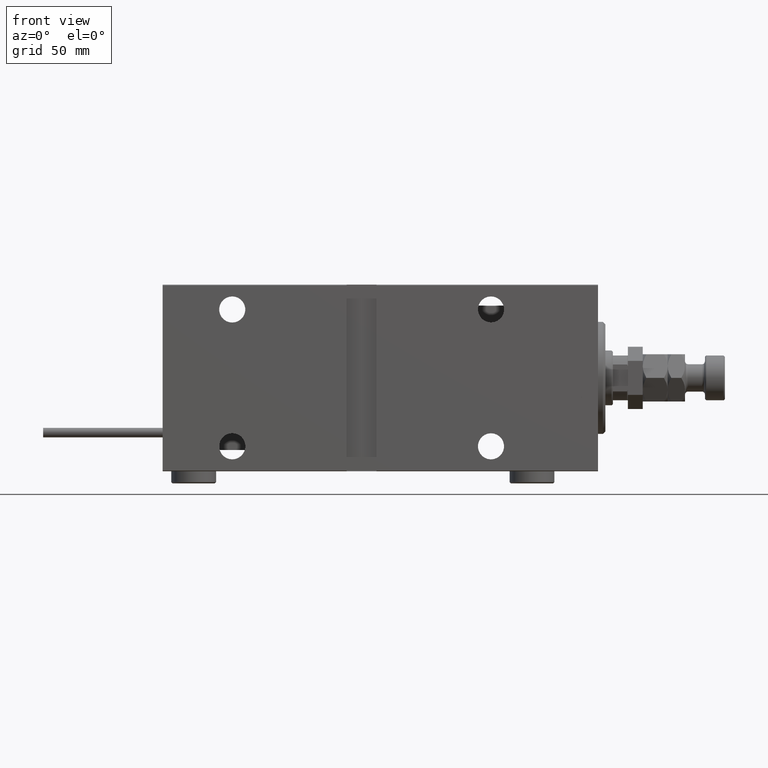
[diagram: clean part render]
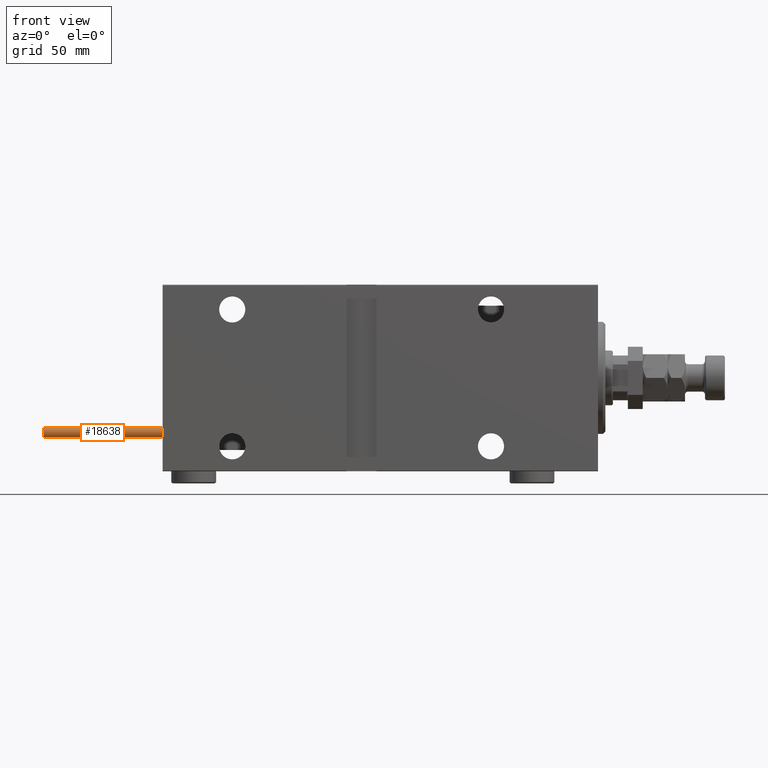
[diagram: same view with one face highlighted and labeled with its STEP entity id]
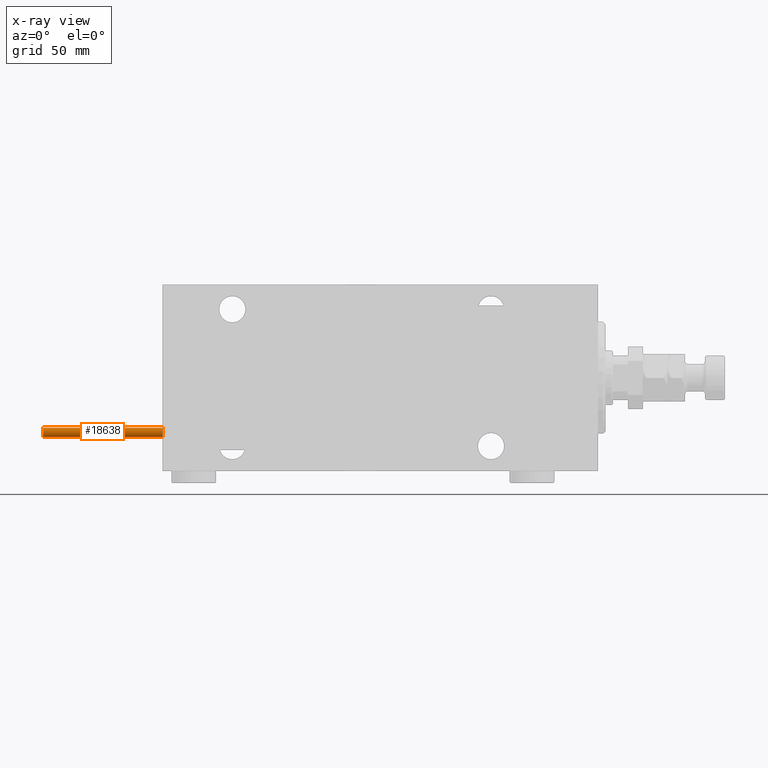
[diagram: x-ray of the same camera — body ghosted, the highlighted face saturated]
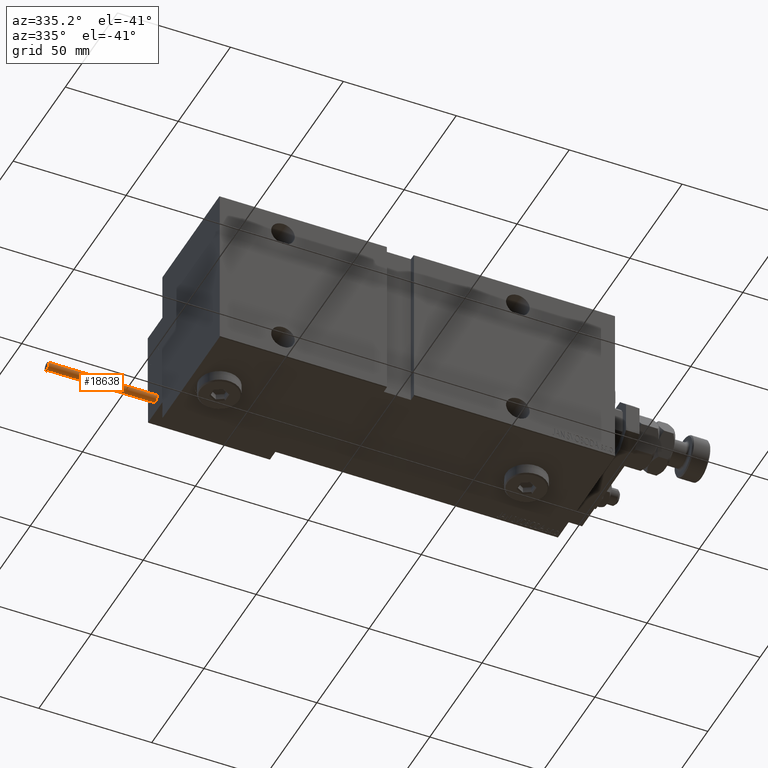
[diagram: same view with one face highlighted and labeled with its STEP entity id]
A machine part, front view. The second image highlights one B-rep face of the part: STEP entity #18638.
The next image is the same camera in x-ray: the body ghosted, the highlighted face saturated — about 0% of this face is hidden behind the body in this view.
A second angle (auxiliary view) of the same face is appended — the face is thin or edge-on in the first view.
In plain terms, the highlighted cylindrical surface (edge-blend (fillet) strip) has radius 1.9 mm, axis along (1, -0, 0).
Its self-contained STEP definition (entity closure, byte-faithful):
#2037 = DIRECTION ( 'NONE',  ( -0.000000000000000000, -0.000000000000000000, -1.000000000000000000 ) ) ;
#2297 = LINE ( 'NONE', #18617, #20491 ) ;
#8193 = VERTEX_POINT ( 'NONE', #21263 ) ;
#8624 = AXIS2_PLACEMENT_3D ( 'NONE', #10093, #22137, #18394 ) ;
#8723 = CARTESIAN_POINT ( 'NONE',  ( 1.899999999999999467, 2.326828918379970872E-16, 48.00000000000000000 ) ) ;
#9271 = CARTESIAN_POINT ( 'NONE',  ( -1.899999999999999467, 0.000000000000000000, 0.000000000000000000 ) ) ;
#10093 = CARTESIAN_POINT ( 'NONE',  ( 0.000000000000000000, 0.000000000000000000, 0.000000000000000000 ) ) ;
#10322 = VERTEX_POINT ( 'NONE', #14460 ) ;
#11895 = CARTESIAN_POINT ( 'NONE',  ( -1.899999999999999467, 0.000000000000000000, 48.00000000000000000 ) ) ;
#13253 = EDGE_CURVE ( 'NONE', #8193, #38460, #34353, .T. ) ;
#13536 = ORIENTED_EDGE ( 'NONE', *, *, #41358, .F. ) ;
#13685 = VERTEX_POINT ( 'NONE', #9271 ) ;
#14161 = DIRECTION ( 'NONE',  ( -1.000000000000000000, 0.000000000000000000, 0.000000000000000000 ) ) ;
#14460 = CARTESIAN_POINT ( 'NONE',  ( 1.899999999999999467, 2.326828918379970872E-16, 0.000000000000000000 ) ) ;
#14830 = EDGE_LOOP ( 'NONE', ( #13536, #18393, #17840, #17019 ) ) ;
#17019 = ORIENTED_EDGE ( 'NONE', *, *, #36261, .T. ) ;
#17656 = CYLINDRICAL_SURFACE ( 'NONE', #29549, 1.899999999999999467 ) ;
#17840 = ORIENTED_EDGE ( 'NONE', *, *, #39489, .T. ) ;
#18393 = ORIENTED_EDGE ( 'NONE', *, *, #13253, .F. ) ;
#18394 = DIRECTION ( 'NONE',  ( 1.000000000000000000, 0.000000000000000000, 0.000000000000000000 ) ) ;
#18617 = CARTESIAN_POINT ( 'NONE',  ( 1.899999999999999467, 2.326828918379970872E-16, 48.00000000000000000 ) ) ;
#18638 = ADVANCED_FACE ( 'NONE', ( #30491 ), #17656, .T. ) ;
#19223 = VECTOR ( 'NONE', #24212, 1000.000000000000000 ) ;
#19660 = LINE ( 'NONE', #11895, #19223 ) ;
#20491 = VECTOR ( 'NONE', #2037, 1000.000000000000000 ) ;
#21263 = CARTESIAN_POINT ( 'NONE',  ( -1.899999999999999467, 0.000000000000000000, 48.00000000000000000 ) ) ;
#22137 = DIRECTION ( 'NONE',  ( 0.000000000000000000, 0.000000000000000000, 1.000000000000000000 ) ) ;
#23096 = DIRECTION ( 'NONE',  ( 0.000000000000000000, 0.000000000000000000, 1.000000000000000000 ) ) ;
#24212 = DIRECTION ( 'NONE',  ( -0.000000000000000000, -0.000000000000000000, -1.000000000000000000 ) ) ;
#29549 = AXIS2_PLACEMENT_3D ( 'NONE', #42281, #39049, #14161 ) ;
#30491 = FACE_OUTER_BOUND ( 'NONE', #14830, .T. ) ;
#34353 = CIRCLE ( 'NONE', #51471, 1.899999999999999467 ) ;
#35961 = CIRCLE ( 'NONE', #8624, 1.899999999999999467 ) ;
#36261 = EDGE_CURVE ( 'NONE', #13685, #10322, #35961, .T. ) ;
#38460 = VERTEX_POINT ( 'NONE', #8723 ) ;
#39049 = DIRECTION ( 'NONE',  ( -0.000000000000000000, -0.000000000000000000, -1.000000000000000000 ) ) ;
#39489 = EDGE_CURVE ( 'NONE', #8193, #13685, #19660, .T. ) ;
#39680 = CARTESIAN_POINT ( 'NONE',  ( 0.000000000000000000, 0.000000000000000000, 48.00000000000000000 ) ) ;
#41358 = EDGE_CURVE ( 'NONE', #38460, #10322, #2297, .T. ) ;
#42281 = CARTESIAN_POINT ( 'NONE',  ( 0.000000000000000000, 0.000000000000000000, 48.00000000000000000 ) ) ;
#46647 = DIRECTION ( 'NONE',  ( 1.000000000000000000, 0.000000000000000000, 0.000000000000000000 ) ) ;
#51471 = AXIS2_PLACEMENT_3D ( 'NONE', #39680, #23096, #46647 ) ;